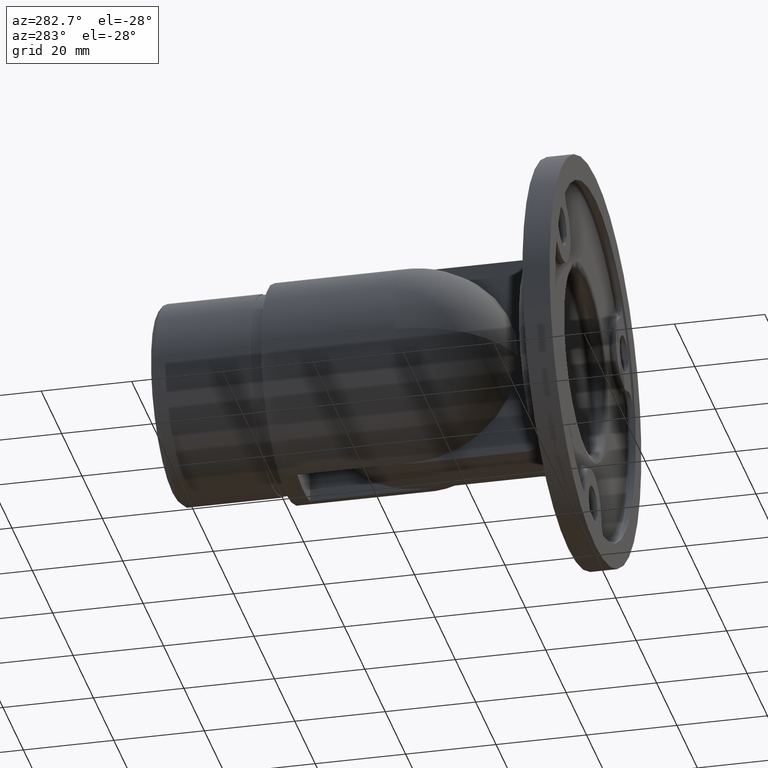
[diagram: clean part render]
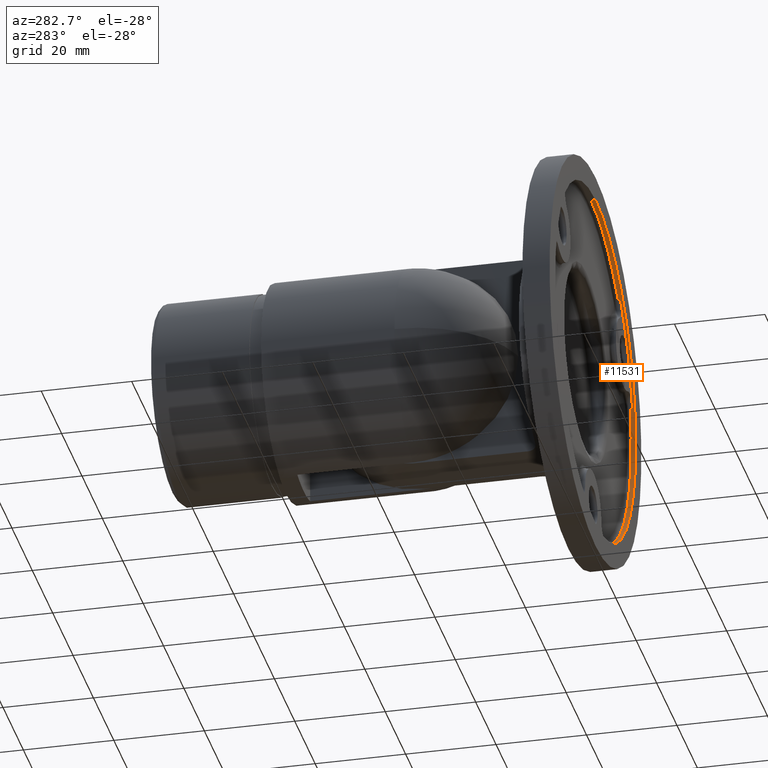
[diagram: same view with one face highlighted and labeled with its STEP entity id]
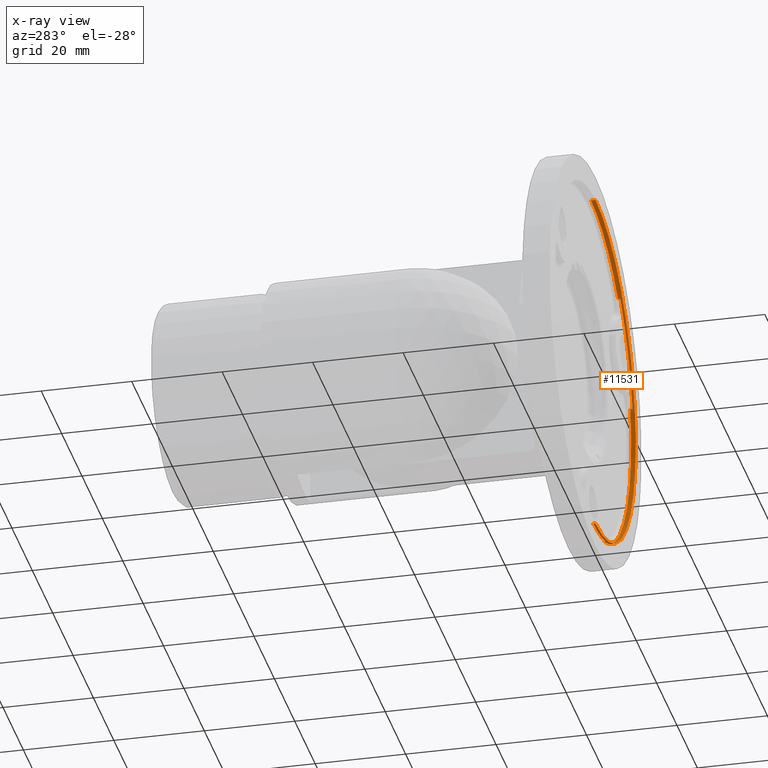
[diagram: x-ray of the same camera — body ghosted, the highlighted face saturated]
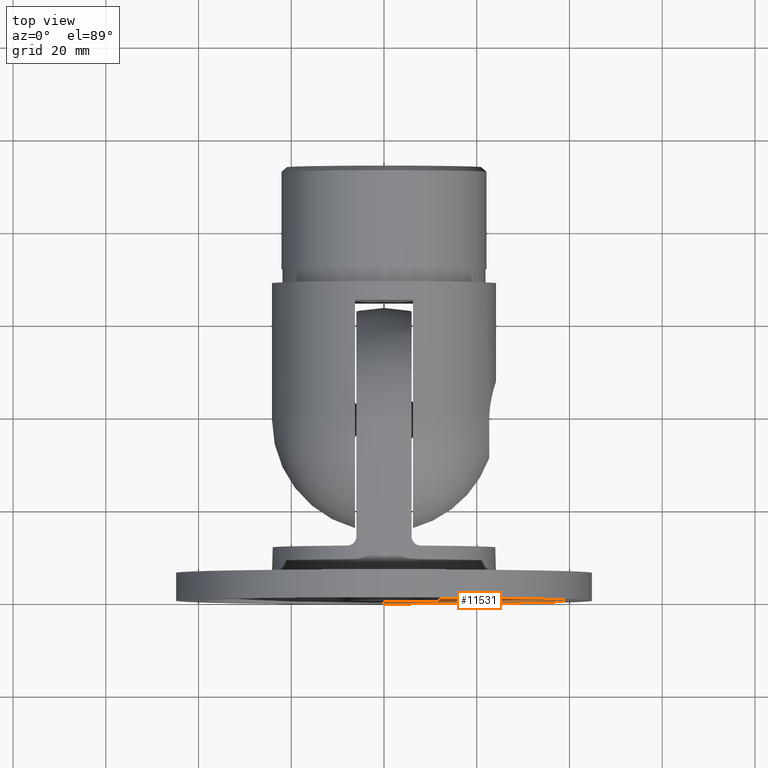
[diagram: same view with one face highlighted and labeled with its STEP entity id]
A machine part, auxiliary view. The second image highlights one B-rep face of the part: STEP entity #11531.
The next image is the same camera in x-ray: the body ghosted, the highlighted face saturated — about 0% of this face is hidden behind the body in this view.
A second angle (top view) of the same face is appended — the face is thin or edge-on in the first view.
In plain terms, the highlighted cylindrical surface (partial cylindrical patch) has radius 39.5 mm, axis along (-0, -1, -0).
Its self-contained STEP definition (entity closure, byte-faithful):
#67 = EDGE_CURVE ( 'NONE', #17311, #19202, #9884, .T. ) ;
#142 = AXIS2_PLACEMENT_3D ( 'NONE', #4403, #6334, #563 ) ;
#563 = DIRECTION ( 'NONE',  ( 0.000000000000000000, 0.000000000000000000, -1.000000000000000000 ) ) ;
#608 = DIRECTION ( 'NONE',  ( -0.000000000000000000, -1.000000000000000000, -0.000000000000000000 ) ) ;
#610 = EDGE_LOOP ( 'NONE', ( #5507, #637, #18420, #5930, #10186, #20003, #16986, #8082, #12166, #11868 ) ) ;
#637 = ORIENTED_EDGE ( 'NONE', *, *, #16372, .T. ) ;
#1002 = EDGE_CURVE ( 'NONE', #2416, #16911, #7093, .T. ) ;
#1738 = DIRECTION ( 'NONE',  ( -0.000000000000000000, -1.000000000000000000, -0.000000000000000000 ) ) ;
#1743 = DIRECTION ( 'NONE',  ( 0.000000000000000000, 0.000000000000000000, -1.000000000000000000 ) ) ;
#1784 = VECTOR ( 'NONE', #608, 1000.000000000000000 ) ;
#1990 = DIRECTION ( 'NONE',  ( -0.000000000000000000, -1.000000000000000000, -0.000000000000000000 ) ) ;
#2051 = CARTESIAN_POINT ( 'NONE',  ( 26.66699540599237750, 0.5000000000000000000, 29.13968695811233545 ) ) ;
#2095 = CIRCLE ( 'NONE', #4688, 39.50000000000000711 ) ;
#2416 = VERTEX_POINT ( 'NONE', #10174 ) ;
#3195 = CARTESIAN_POINT ( 'NONE',  ( 0.000000000000000000, 1.000000000000000000, 0.000000000000000000 ) ) ;
#3352 = AXIS2_PLACEMENT_3D ( 'NONE', #14291, #16325, #16399 ) ;
#3568 = CIRCLE ( 'NONE', #22883, 39.50000000000000711 ) ;
#4401 = LINE ( 'NONE', #9152, #10444 ) ;
#4403 = CARTESIAN_POINT ( 'NONE',  ( 0.000000000000000000, 2.000000000000000000, 0.000000000000000000 ) ) ;
#4688 = AXIS2_PLACEMENT_3D ( 'NONE', #7339, #14814, #18848 ) ;
#4714 = EDGE_CURVE ( 'NONE', #15364, #13005, #4401, .T. ) ;
#5126 = DIRECTION ( 'NONE',  ( -0.000000000000000000, -1.000000000000000000, -0.000000000000000000 ) ) ;
#5200 = CARTESIAN_POINT ( 'NONE',  ( 11.90221146105501404, 2.000000000000000000, -37.66413894324853828 ) ) ;
#5507 = ORIENTED_EDGE ( 'NONE', *, *, #15559, .F. ) ;
#5828 = CIRCLE ( 'NONE', #3352, 39.50000000000000711 ) ;
#5930 = ORIENTED_EDGE ( 'NONE', *, *, #23029, .F. ) ;
#6334 = DIRECTION ( 'NONE',  ( -0.000000000000000000, -1.000000000000000000, -0.000000000000000000 ) ) ;
#6945 = VERTEX_POINT ( 'NONE', #2051 ) ;
#7016 = DIRECTION ( 'NONE',  ( 0.000000000000000000, 0.000000000000000000, -1.000000000000000000 ) ) ;
#7093 = LINE ( 'NONE', #22910, #9535 ) ;
#7150 = VECTOR ( 'NONE', #5126, 1000.000000000000000 ) ;
#7339 = CARTESIAN_POINT ( 'NONE',  ( 0.000000000000000000, 0.5000000000000000000, 0.000000000000000000 ) ) ;
#7354 = CARTESIAN_POINT ( 'NONE',  ( 0.000000000000000000, 0.5000000000000000000, 0.000000000000000000 ) ) ;
#7422 = CARTESIAN_POINT ( 'NONE',  ( 4.837354856632047030E-15, 1.000000000000000000, 39.50000000000000711 ) ) ;
#7901 = CARTESIAN_POINT ( 'NONE',  ( 26.66699540599238105, 2.000000000000000000, 29.13968695811233545 ) ) ;
#8082 = ORIENTED_EDGE ( 'NONE', *, *, #18668, .F. ) ;
#9152 = CARTESIAN_POINT ( 'NONE',  ( 38.56920686704748391, 2.000000000000000000, 8.524451985136504817 ) ) ;
#9214 = LINE ( 'NONE', #21296, #13159 ) ;
#9305 = CIRCLE ( 'NONE', #10902, 39.50000000000000711 ) ;
#9535 = VECTOR ( 'NONE', #1738, 1000.000000000000000 ) ;
#9550 = VERTEX_POINT ( 'NONE', #24894 ) ;
#9727 = EDGE_CURVE ( 'NONE', #9550, #6945, #17246, .T. ) ;
#9802 = AXIS2_PLACEMENT_3D ( 'NONE', #3195, #10953, #16788 ) ;
#9884 = LINE ( 'NONE', #5200, #7150 ) ;
#10174 = CARTESIAN_POINT ( 'NONE',  ( 0.000000000000000000, 0.5000000000000000000, -39.50000000000000711 ) ) ;
#10186 = ORIENTED_EDGE ( 'NONE', *, *, #4714, .F. ) ;
#10444 = VECTOR ( 'NONE', #12895, 1000.000000000000000 ) ;
#10902 = AXIS2_PLACEMENT_3D ( 'NONE', #7354, #14896, #7016 ) ;
#10953 = DIRECTION ( 'NONE',  ( -0.000000000000000000, 1.000000000000000000, -0.000000000000000000 ) ) ;
#11531 = ADVANCED_FACE ( 'NONE', ( #24125 ), #21738, .F. ) ;
#11868 = ORIENTED_EDGE ( 'NONE', *, *, #12190, .T. ) ;
#12166 = ORIENTED_EDGE ( 'NONE', *, *, #1002, .T. ) ;
#12190 = EDGE_CURVE ( 'NONE', #16911, #17629, #3568, .T. ) ;
#12895 = DIRECTION ( 'NONE',  ( -0.000000000000000000, -1.000000000000000000, -0.000000000000000000 ) ) ;
#13005 = VERTEX_POINT ( 'NONE', #23855 ) ;
#13159 = VECTOR ( 'NONE', #1990, 1000.000000000000000 ) ;
#13202 = DIRECTION ( 'NONE',  ( 0.000000000000000000, -1.000000000000000000, 0.000000000000000000 ) ) ;
#14291 = CARTESIAN_POINT ( 'NONE',  ( 0.000000000000000000, 1.000000000000000000, 0.000000000000000000 ) ) ;
#14814 = DIRECTION ( 'NONE',  ( 0.000000000000000000, -1.000000000000000000, 0.000000000000000000 ) ) ;
#14896 = DIRECTION ( 'NONE',  ( 0.000000000000000000, -1.000000000000000000, 0.000000000000000000 ) ) ;
#15076 = EDGE_CURVE ( 'NONE', #15364, #17311, #23765, .T. ) ;
#15217 = CARTESIAN_POINT ( 'NONE',  ( 0.000000000000000000, 0.000000000000000000, 0.000000000000000000 ) ) ;
#15364 = VERTEX_POINT ( 'NONE', #21939 ) ;
#15559 = EDGE_CURVE ( 'NONE', #23812, #17629, #9214, .T. ) ;
#16053 = CARTESIAN_POINT ( 'NONE',  ( 0.000000000000000000, 0.000000000000000000, -39.50000000000000711 ) ) ;
#16325 = DIRECTION ( 'NONE',  ( -0.000000000000000000, 1.000000000000000000, -0.000000000000000000 ) ) ;
#16372 = EDGE_CURVE ( 'NONE', #23812, #9550, #5828, .T. ) ;
#16399 = DIRECTION ( 'NONE',  ( 0.000000000000000000, 0.000000000000000000, 1.000000000000000000 ) ) ;
#16788 = DIRECTION ( 'NONE',  ( 0.000000000000000000, 0.000000000000000000, 1.000000000000000000 ) ) ;
#16799 = CARTESIAN_POINT ( 'NONE',  ( 11.90221146105501404, 0.5000000000000000000, -37.66413894324853828 ) ) ;
#16911 = VERTEX_POINT ( 'NONE', #16053 ) ;
#16986 = ORIENTED_EDGE ( 'NONE', *, *, #67, .T. ) ;
#17246 = LINE ( 'NONE', #7901, #1784 ) ;
#17311 = VERTEX_POINT ( 'NONE', #18197 ) ;
#17566 = CARTESIAN_POINT ( 'NONE',  ( 4.837354856632047030E-15, 0.000000000000000000, 39.50000000000000711 ) ) ;
#17629 = VERTEX_POINT ( 'NONE', #17566 ) ;
#18197 = CARTESIAN_POINT ( 'NONE',  ( 11.90221146105501404, 1.000000000000000000, -37.66413894324853828 ) ) ;
#18420 = ORIENTED_EDGE ( 'NONE', *, *, #9727, .T. ) ;
#18668 = EDGE_CURVE ( 'NONE', #2416, #19202, #2095, .T. ) ;
#18848 = DIRECTION ( 'NONE',  ( 0.000000000000000000, 0.000000000000000000, -1.000000000000000000 ) ) ;
#19202 = VERTEX_POINT ( 'NONE', #16799 ) ;
#20003 = ORIENTED_EDGE ( 'NONE', *, *, #15076, .T. ) ;
#21296 = CARTESIAN_POINT ( 'NONE',  ( 4.837354856632047030E-15, 2.000000000000000000, 39.50000000000001421 ) ) ;
#21738 = CYLINDRICAL_SURFACE ( 'NONE', #142, 39.50000000000001421 ) ;
#21939 = CARTESIAN_POINT ( 'NONE',  ( 38.56920686704748391, 1.000000000000000000, 8.524451985136504817 ) ) ;
#22883 = AXIS2_PLACEMENT_3D ( 'NONE', #15217, #13202, #1743 ) ;
#22910 = CARTESIAN_POINT ( 'NONE',  ( 0.000000000000000000, 2.000000000000000000, -39.50000000000001421 ) ) ;
#23029 = EDGE_CURVE ( 'NONE', #13005, #6945, #9305, .T. ) ;
#23765 = CIRCLE ( 'NONE', #9802, 39.50000000000000711 ) ;
#23812 = VERTEX_POINT ( 'NONE', #7422 ) ;
#23855 = CARTESIAN_POINT ( 'NONE',  ( 38.56920686704748391, 0.5000000000000000000, 8.524451985136504817 ) ) ;
#24125 = FACE_OUTER_BOUND ( 'NONE', #610, .T. ) ;
#24894 = CARTESIAN_POINT ( 'NONE',  ( 26.66699540599238105, 1.000000000000000000, 29.13968695811233545 ) ) ;